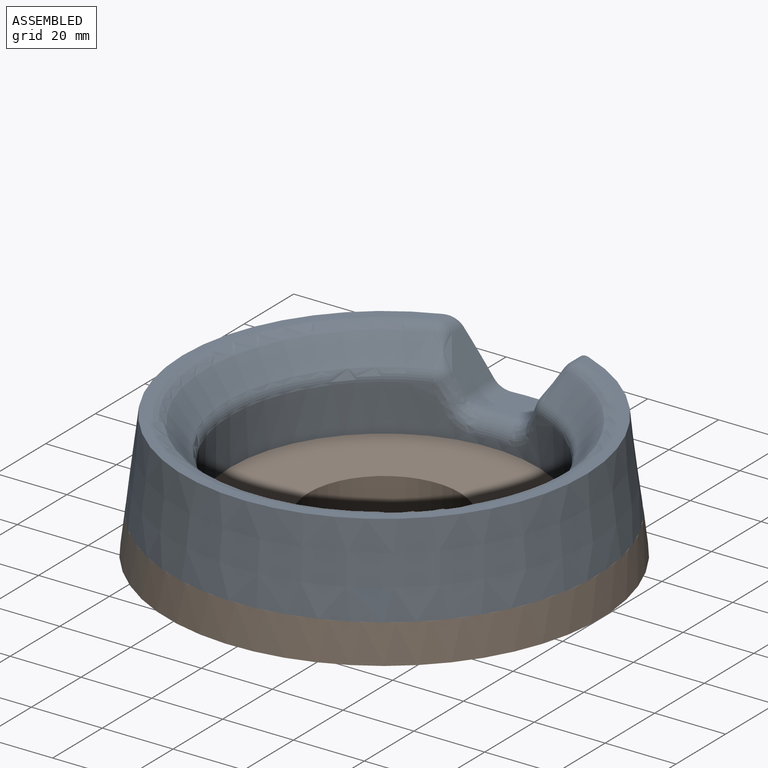
[diagram: assembled view]
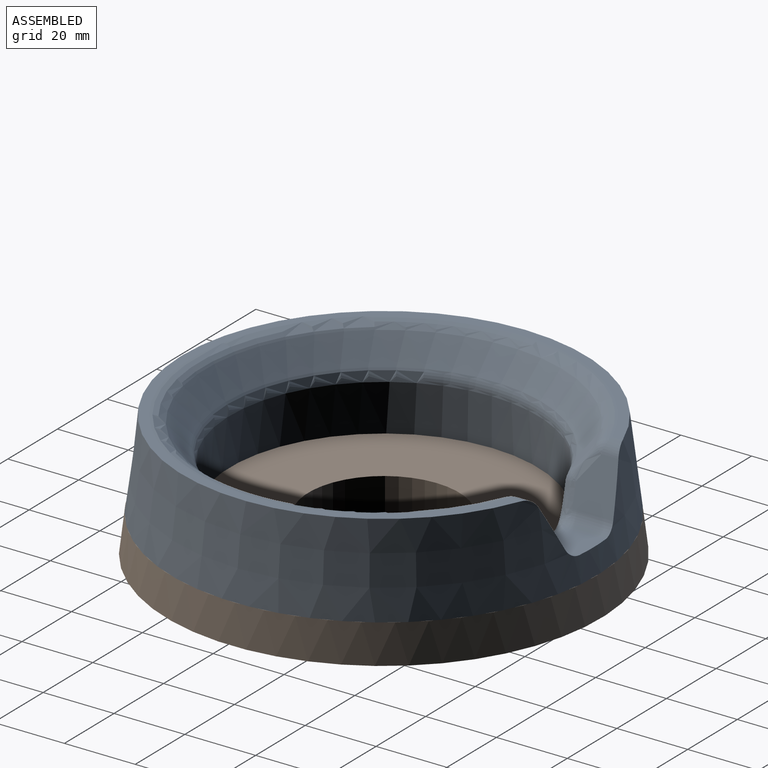
[diagram: assembled view, second angle]
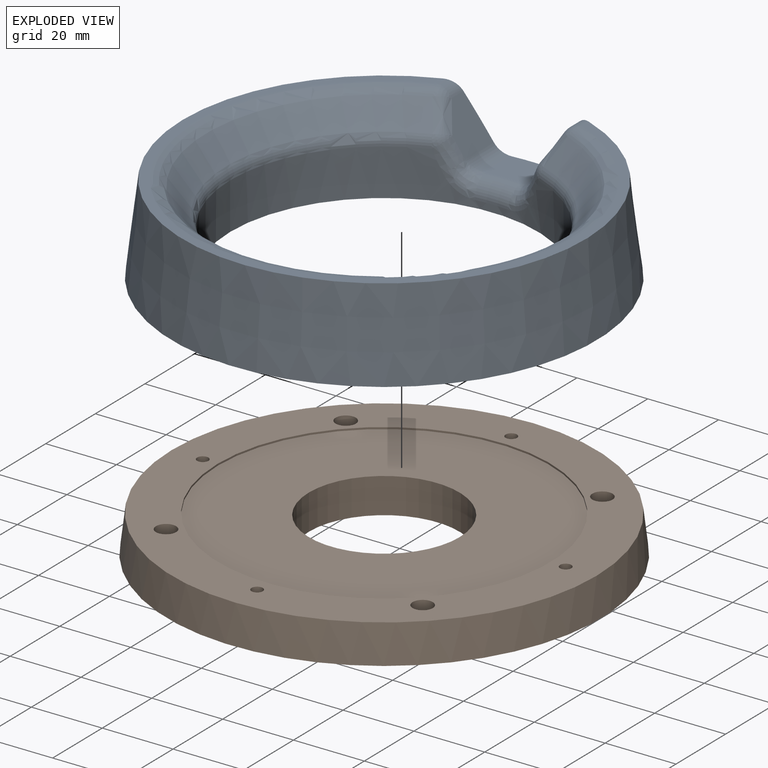
[diagram: exploded view]
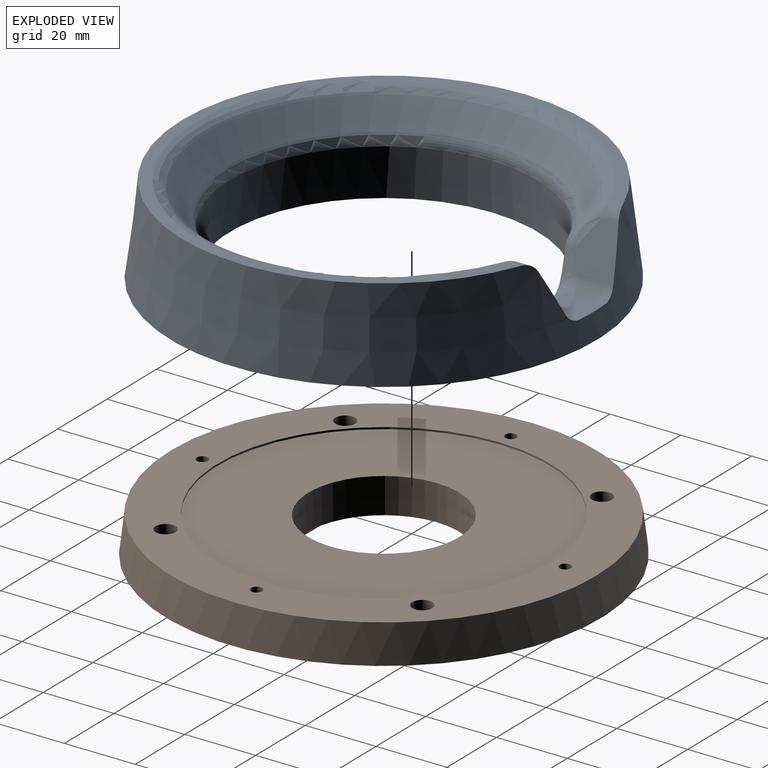
[diagram: exploded view, second angle]
ASSEMBLY  parts=2 mates=3
PART A: 45 faces, bbox 120.2x120.2x38.9 mm
  f0: plane 113.86x110.02mm, normal (0,0,1), area 821.9mm2, adj f4,f18,f22,f23
  f1: cone r=51.93mm half-angle=40.1deg, axis (0,0,1), area 2350.1mm2, adj f17,f18,f26,f27
  f2: cylinder r=43.5mm len=87mm, axis (0,0,-1), area 3323.5mm2, adj f3,f17,f30,f33,f34,f35,f36
  f3: plane 120x120mm, normal (0,0,-1), area 5128.7mm2, adj f2,f4,f7,f10,f13,f16,f37,f39
  f4: cone r=60mm half-angle=7deg, axis (0,0,-1), area 8779.8mm2, adj f0,f3,f19,f20,f21,f22,f23,f31
  f5: cone r=0mm half-angle=59deg, axis (0,0,-1), area 23.8mm2, adj f6
  f6: cylinder r=2.55mm len=5.1mm, axis (0,0,-1), area 76mm2, adj f5,f7
  f7: cone r=2.55mm half-angle=22.5deg, axis (0,0,-1), area 4.5mm2, adj f3,f6
  f8: cone r=0mm half-angle=59deg, axis (0,0,-1), area 23.8mm2, adj f9
  f9: cylinder r=2.55mm len=5.1mm, axis (0,0,-1), area 76mm2, adj f8,f10
  f10: cone r=2.55mm half-angle=22.5deg, axis (0,0,-1), area 4.5mm2, adj f3,f9
  f11: cone r=0mm half-angle=59deg, axis (0,0,-1), area 23.8mm2, adj f12
  f12: cylinder r=2.55mm len=5.1mm, axis (0,0,-1), area 76mm2, adj f11,f13
  f13: cone r=2.55mm half-angle=22.5deg, axis (0,0,-1), area 4.5mm2, adj f3,f12
  f14: cone r=0mm half-angle=59deg, axis (0,0,-1), area 23.8mm2, adj f15
  f15: cylinder r=2.55mm len=5.1mm, axis (0,0,-1), area 76mm2, adj f14,f16
  f16: cone r=2.55mm half-angle=22.5deg, axis (0,0,-1), area 4.5mm2, adj f3,f15
  f17: torus R=48.5mm, axis (0,0,1), area 855.6mm2, adj f1,f2,f28,f29
  f18: torus R=54.25mm, axis (0,0,1), area 1251.1mm2, adj f0,f1,f24,f25
  f19: plane 12.78x12.75mm, normal (-0.89,0,0.46), area 135.7mm2, adj f4,f23,f27,f32,f33
  f20: plane 12.78x12.75mm, normal (0.89,0,0.46), area 135.7mm2, adj f4,f22,f26,f30,f31
  f21: plane 10.92x10.4mm, normal (0,0,1), area 110.8mm2, adj f4,f31,f32,f36
  f22: cylinder r=5mm len=4.74mm, axis (0,1,0), area 20.9mm2, adj f0,f4,f20,f24
  f23: cylinder r=5mm len=4.74mm, axis (0,1,0), area 20.9mm2, adj f0,f4,f19,f25
  f24: sphere r=5mm, area 11.6mm2, adj f18,f22,f26
  f25: sphere r=5mm, area 12.5mm2, adj f18,f23,f27
  f26: bspline ~18.3x15.67mm, area 45.1mm2, adj f1,f20,f24,f28
  f27: bspline ~28.53x22.81mm, area 45.1mm2, adj f1,f19,f25,f29
  f28: sphere r=5mm, area 10.5mm2, adj f17,f26,f30
  f29: sphere r=5mm, area 10.5mm2, adj f17,f27,f33
  f30: bspline ~8.03x5.68mm, area 41.3mm2, adj f2,f20,f28,f34
  f31: cylinder r=5mm len=12.5mm, axis (0,1,0), area 61.1mm2, adj f4,f20,f21,f34
  f32: cylinder r=5mm len=12.5mm, axis (0,1,0), area 61.1mm2, adj f4,f19,f21,f35
  f33: bspline ~8.03x5.68mm, area 41.3mm2, adj f2,f19,f29,f35
  f34: bspline ~10.43x8.4mm, area 53mm2, adj f2,f30,f31,f36
  f35: bspline ~10.01x8.63mm, area 53mm2, adj f2,f32,f33,f36
  f36: torus R=48.5mm, axis (0,0,-1), area 76.4mm2, adj f2,f21,f34,f35
  f37: cylinder r=3.43mm len=10mm, axis (0,0,-1), area 215.5mm2, adj f3,f38
  f38: plane 6.86x6.86mm, normal (0,0,-1), area 36.9mm2, adj f37
  f39: cylinder r=3.43mm len=10mm, axis (0,0,-1), area 215.5mm2, adj f3,f40
  f40: plane 6.86x6.86mm, normal (0,0,-1), area 36.9mm2, adj f39
  f41: cylinder r=3.43mm len=10mm, axis (0,0,-1), area 215.5mm2, adj f3,f42
  f42: plane 6.86x6.86mm, normal (0,0,-1), area 36.9mm2, adj f41
  f43: cylinder r=3.43mm len=10mm, axis (0,0,-1), area 215.5mm2, adj f3,f44
  f44: plane 6.86x6.86mm, normal (0,0,-1), area 36.9mm2, adj f43
PART B: 34 faces, bbox 122.6x122.6x10.5 mm
  f0: plane 120x120mm, normal (0,0,1), area 4235.7mm2, adj f1,f5,f6,f9,f12,f15,f26,f28
  f1: cylinder r=47mm len=94mm, axis (0,0,-1), area 147.7mm2, adj f0,f2
  f2: plane 94x94mm, normal (0,0,1), area 5515.9mm2, adj f1,f3
  f3: cylinder r=21.29mm len=42.58mm, axis (0,0,-1), area 1337.6mm2, adj f2,f4
  f4: plane 122.58x122.58mm, normal (0,0,-1), area 9869.9mm2, adj f3,f5,f8,f11,f14,f17,f18,f20
  f5: cone r=60mm half-angle=7deg, axis (0,0,-1), area 4031mm2, adj f0,f4
  f6: cylinder r=1.6mm len=7mm, axis (0,0,-1), area 70.4mm2, adj f0,f7
  f7: plane 6x6mm, normal (0,0,-1), area 20.2mm2, adj f6,f8
  f8: cylinder r=3mm len=6mm, axis (0,0,-1), area 66mm2, adj f4,f7
  f9: cylinder r=1.6mm len=7mm, axis (0,0,-1), area 70.4mm2, adj f0,f10
  f10: plane 6x6mm, normal (0,0,-1), area 20.2mm2, adj f9,f11
  f11: cylinder r=3mm len=6mm, axis (0,0,-1), area 66mm2, adj f4,f10
  f12: cylinder r=1.6mm len=7mm, axis (0,0,-1), area 70.4mm2, adj f0,f13
  f13: plane 6x6mm, normal (0,0,-1), area 20.2mm2, adj f12,f14
  f14: cylinder r=3mm len=6mm, axis (0,0,-1), area 66mm2, adj f4,f13
  f15: cylinder r=1.6mm len=7mm, axis (0,0,-1), area 70.4mm2, adj f0,f16
  f16: plane 6x6mm, normal (0,0,-1), area 20.2mm2, adj f15,f17
  f17: cylinder r=3mm len=6mm, axis (0,0,-1), area 66mm2, adj f4,f16
  f18: cylinder r=5.6mm len=11.2mm, axis (0,0,-1), area 88mm2, adj f4,f19
  f19: plane 11.2x11.2mm, normal (0,0,-1), area 98.5mm2, adj f18
  f20: cylinder r=5.6mm len=11.2mm, axis (0,0,-1), area 88mm2, adj f4,f21
  f21: plane 11.2x11.2mm, normal (0,0,-1), area 98.5mm2, adj f20
  f22: cylinder r=5.6mm len=11.2mm, axis (0,0,-1), area 88mm2, adj f4,f23
  f23: plane 11.2x11.2mm, normal (0,0,-1), area 98.5mm2, adj f22
  f24: cylinder r=5.6mm len=11.2mm, axis (0,0,-1), area 88mm2, adj f4,f25
  f25: plane 11.2x11.2mm, normal (0,0,-1), area 98.5mm2, adj f24
  f26: cylinder r=2.85mm len=5.7mm, axis (0,0,1), area 89.5mm2, adj f0,f27
  f27: plane 5.7x5.7mm, normal (0,0,1), area 25.5mm2, adj f26
  f28: cylinder r=2.85mm len=5.7mm, axis (0,0,1), area 89.5mm2, adj f0,f29
  f29: plane 5.7x5.7mm, normal (0,0,1), area 25.5mm2, adj f28
  f30: cylinder r=2.85mm len=5.7mm, axis (0,0,1), area 89.5mm2, adj f0,f31
  f31: plane 5.7x5.7mm, normal (0,0,1), area 25.5mm2, adj f30
  f32: cylinder r=2.85mm len=5.7mm, axis (0,0,1), area 89.5mm2, adj f0,f33
  f33: plane 5.7x5.7mm, normal (0,0,1), area 25.5mm2, adj f32
PLACE A t=(-27.06,-44.75,-52.94)mm
PLACE B t=(-27.06,-44.75,-52.94)mm
MATE planar B.f1 <-> A.f1  axis (0,0,1) through (-27.06,-44.75,-52.94)mm
MATE slider A.f39 <-> B.f22  axis (0,0,-1) through (-63.3,-8.51,-47.94)mm
MATE slider B.f18 <-> A.f43  axis (0,0,1) through (9.18,-80.99,-55.44)mm
